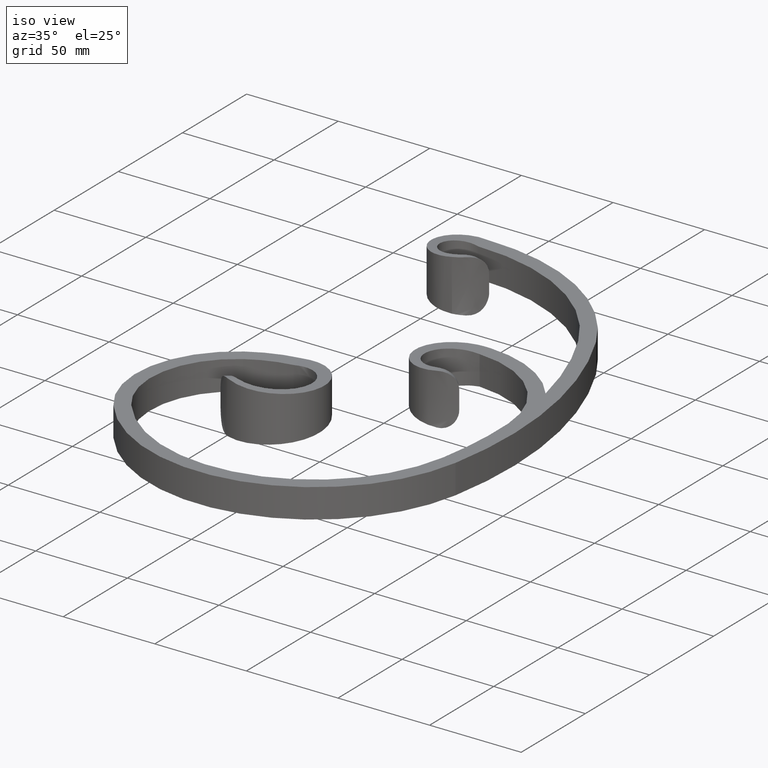
[diagram: clean part render]
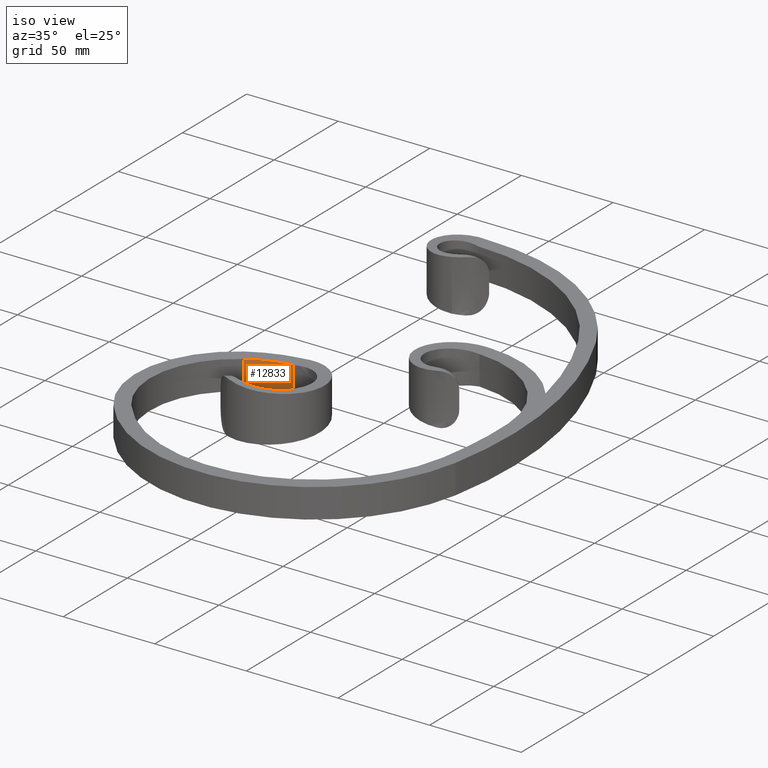
[diagram: same view with one face highlighted and labeled with its STEP entity id]
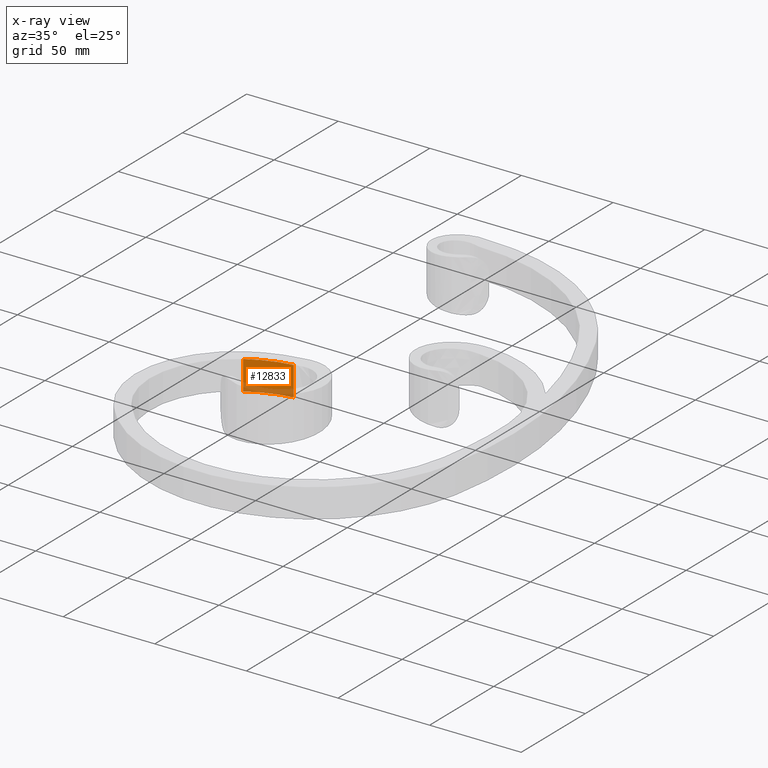
[diagram: x-ray of the same camera — body ghosted, the highlighted face saturated]
A machine part, iso view. The second image highlights one B-rep face of the part: STEP entity #12833.
The next image is the same camera in x-ray: the body ghosted, the highlighted face saturated — about 20% of this face is hidden behind the body in this view.
In plain terms, the highlighted cylindrical surface (partial cylindrical patch) has radius 57 mm, axis along (-0, -0, -1).
Its self-contained STEP definition (entity closure, byte-faithful):
#26 = CIRCLE ( 'NONE', #10782, 57.00000000000000711 ) ;
#1722 = EDGE_LOOP ( 'NONE', ( #12421, #5845, #7279, #4766 ) ) ;
#2545 = CARTESIAN_POINT ( 'NONE',  ( -34.70492020182246051, -20.64359685746702056, -8.000000000000001776 ) ) ;
#3269 = CIRCLE ( 'NONE', #5830, 57.00000000000000711 ) ;
#3314 = VECTOR ( 'NONE', #9817, 1000.000000000000000 ) ;
#3323 = DIRECTION ( 'NONE',  ( -0.000000000000000000, -0.000000000000000000, -1.000000000000000000 ) ) ;
#3407 = EDGE_CURVE ( 'NONE', #9815, #6478, #11233, .T. ) ;
#3497 = VERTEX_POINT ( 'NONE', #13262 ) ;
#4115 = CARTESIAN_POINT ( 'NONE',  ( -34.70492020182245341, -20.64359685746702766, -8.000000000000001776 ) ) ;
#4766 = ORIENTED_EDGE ( 'NONE', *, *, #3407, .T. ) ;
#5218 = EDGE_CURVE ( 'NONE', #3497, #10316, #5468, .T. ) ;
#5456 = CARTESIAN_POINT ( 'NONE',  ( -27.31195246630007034, -77.16212504125401495, -8.000000000000001776 ) ) ;
#5468 = LINE ( 'NONE', #4115, #7449 ) ;
#5616 = CARTESIAN_POINT ( 'NONE',  ( -56.88382340838961682, -28.43323782859132010, -8.000000000000001776 ) ) ;
#5824 = DIRECTION ( 'NONE',  ( -0.5188047533699918779, 0.8548927581168891399, 0.000000000000000000 ) ) ;
#5830 = AXIS2_PLACEMENT_3D ( 'NONE', #5456, #3323, #7680 ) ;
#5845 = ORIENTED_EDGE ( 'NONE', *, *, #5218, .F. ) ;
#6423 = DIRECTION ( 'NONE',  ( -0.000000000000000000, -0.000000000000000000, -1.000000000000000000 ) ) ;
#6478 = VERTEX_POINT ( 'NONE', #12032 ) ;
#6530 = EDGE_CURVE ( 'NONE', #9815, #3497, #26, .T. ) ;
#6779 = DIRECTION ( 'NONE',  ( -0.000000000000000000, -0.000000000000000000, -1.000000000000000000 ) ) ;
#6959 = CARTESIAN_POINT ( 'NONE',  ( -56.88382340838962392, -28.43323782859130588, 7.999999999999996447 ) ) ;
#7279 = ORIENTED_EDGE ( 'NONE', *, *, #6530, .F. ) ;
#7449 = VECTOR ( 'NONE', #8318, 1000.000000000000000 ) ;
#7680 = DIRECTION ( 'NONE',  ( -0.5188047533699918779, 0.8548927581168891399, 0.000000000000000000 ) ) ;
#8318 = DIRECTION ( 'NONE',  ( 0.000000000000000000, -0.000000000000000000, -1.000000000000000000 ) ) ;
#9087 = AXIS2_PLACEMENT_3D ( 'NONE', #11668, #6423, #11711 ) ;
#9815 = VERTEX_POINT ( 'NONE', #6959 ) ;
#9817 = DIRECTION ( 'NONE',  ( 0.000000000000000000, -0.000000000000000000, -1.000000000000000000 ) ) ;
#10316 = VERTEX_POINT ( 'NONE', #2545 ) ;
#10782 = AXIS2_PLACEMENT_3D ( 'NONE', #12130, #6779, #5824 ) ;
#11233 = LINE ( 'NONE', #5616, #3314 ) ;
#11668 = CARTESIAN_POINT ( 'NONE',  ( -27.31195246630007034, -77.16212504125401495, 0.000000000000000000 ) ) ;
#11679 = CYLINDRICAL_SURFACE ( 'NONE', #9087, 57.00000000000000711 ) ;
#11711 = DIRECTION ( 'NONE',  ( -1.000000000000000000, 0.000000000000000000, 0.000000000000000000 ) ) ;
#12032 = CARTESIAN_POINT ( 'NONE',  ( -56.88382340838962392, -28.43323782859130588, -8.000000000000001776 ) ) ;
#12130 = CARTESIAN_POINT ( 'NONE',  ( -27.31195246630007034, -77.16212504125401495, 7.999999999999996447 ) ) ;
#12180 = FACE_OUTER_BOUND ( 'NONE', #1722, .T. ) ;
#12421 = ORIENTED_EDGE ( 'NONE', *, *, #12864, .T. ) ;
#12833 = ADVANCED_FACE ( 'NONE', ( #12180 ), #11679, .F. ) ;
#12864 = EDGE_CURVE ( 'NONE', #6478, #10316, #3269, .T. ) ;
#13262 = CARTESIAN_POINT ( 'NONE',  ( -34.70492020182246051, -20.64359685746702056, 7.999999999999996447 ) ) ;